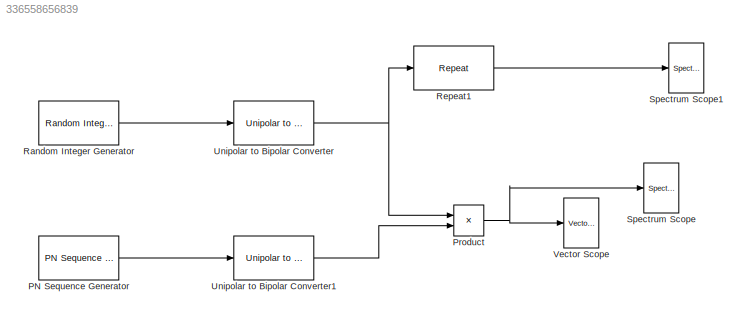
MODEL slx_336558656839
KIND model
BLOCK [Reference] PN Sequence Generator  REF=commseqgen2/PN Sequence
Generator
  Ports = [0, 1]
  SourceBlock = commseqgen2/PN Sequence\nGenerator
  SourceType = PN Sequence Generator
  Ts = (10^-6)/((2^3)-1)
  bitPackDataSigned = off
  bitPackedOutDType = double
  bitPackedOutputs = off
  frameBased = off
  ini_sta = [0 0 0 0 0 1]
  maxOutSize = [10 1]
  maxOutSizeMode = Dialog parameter
  numPackedBits = 8
  outBitMaskSource = Dialog parameter
  outDataType = double
  outVarSiz = off
  poly = [1 1 0 0 0 0 1]
  reset = off
  sampPerFrame = 1
  shift = 0
BLOCK [Product] Product
  InputSameDT = off
  OutDataTypeStr = Inherit: Inherit via internal rule
  Ports = [2, 1]
  SaturateOnIntegerOverflow = off
BLOCK [Reference] Random Integer Generator  REF=commrandsrc2/Random Integer
Generator
  Ports = [0, 1]
  SourceBlock = commrandsrc2/Random Integer\nGenerator
  SourceType = Random Integer Generator
  Ts = 10^-6
  frameBased = off
  mul = 2
  orient = off
  outDataType = double
  sampPerFrame = 1
  seed = 37
BLOCK [Reference] Repeat1  REF=dspsigops/Repeat
  InputProcessing = Columns as channels (frame based)
  N = (2^3)-1
  Ports = [1, 1]
  RateOptions = Allow multirate processing
  SourceBlock = dspsigops/Repeat
  SourceType = Repeat
  UserDataPersistent = on
  ic = 0
  mode = Unused parameter value
BLOCK [Reference] Spectrum Scope  REF=dspsnks4/Spectrum
Scope
  AxisGrid = on
  AxisLegend = off
  AxisProperties = off
  AxisZoom = off
  BufferSize = 128
  DisplayProperties = off
  Domain = Frequency
  FFTlength = 128
  FigPos = get(0,'defaultfigureposition')
  FrameNumber = on
  HorizSpan = 1
  InheritXIncr = on
  LineProperties = off
  Memory = off
  OpenScopeAtSimStart = on
  OpenScopeImmediately = off
  Overlap = 0
  Ports = [1]
  RsSpecScope = 50
  ScopeProperties = on
  SourceBlock = dspsnks4/Spectrum\nScope
  SourceType = Spectrum Scope
  TreatMby1Signals = One channel
  UseBuffer = on
  XAxisParamsVer = 6.9
  XDisplay = 0
  XIncr = 1.0
  XLabel = Samples
  XLimit = Auto
  XMax = 1
  XMin = 0
  XRange = Two-sided ((-Fs/2...Fs/2])
  XUnits = Hertz
  YLabel = Magnitude-squared, dB
  YMax = 10
  YMin = -10
  YUnits = dBW/Hertz
  betaSpecScope = 5
  inpFftLenInherit = on
  isFrameUpgraded = on
  numAvg = 20
  winsampSpecScope = Periodic
  wintypeSpecScope = Hann
BLOCK [Reference] Spectrum Scope1  REF=dspsnks4/Spectrum
Scope
  AxisGrid = on
  AxisLegend = off
  AxisProperties = off
  AxisZoom = off
  BufferSize = 128
  DisplayProperties = off
  Domain = Frequency
  FFTlength = 128
  FigPos = get(0,'defaultfigureposition')
  FrameNumber = on
  HorizSpan = 1
  InheritXIncr = on
  LineProperties = off
  Memory = off
  OpenScopeAtSimStart = on
  OpenScopeImmediately = off
  Overlap = 0
  Ports = [1]
  RsSpecScope = 50
  ScopeProperties = on
  SourceBlock = dspsnks4/Spectrum\nScope
  SourceType = Spectrum Scope
  TreatMby1Signals = One channel
  UseBuffer = on
  XAxisParamsVer = 6.9
  XDisplay = 0
  XIncr = 1.0
  XLabel = Samples
  XLimit = Auto
  XMax = 1
  XMin = 0
  XRange = Two-sided ((-Fs/2...Fs/2])
  XUnits = Hertz
  YLabel = Magnitude-squared, dB
  YMax = 10
  YMin = -10
  YUnits = dBW/Hertz
  betaSpecScope = 5
  inpFftLenInherit = on
  isFrameUpgraded = on
  numAvg = 20
  winsampSpecScope = Periodic
  wintypeSpecScope = Hann
BLOCK [Reference] Unipolar to Bipolar Converter  REF=commutil2/Unipolar to
Bipolar
Converter
  M = 2
  Ports = [1, 1]
  SourceBlock = commutil2/Unipolar to\nBipolar\nConverter
  SourceType = Unipolar to Bipolar Converter
  dataType = Inherit via internal rule
  polarity = Positive
BLOCK [Reference] Unipolar to Bipolar Converter1  REF=commutil2/Unipolar to
Bipolar
Converter
  M = 2
  Ports = [1, 1]
  SourceBlock = commutil2/Unipolar to\nBipolar\nConverter
  SourceType = Unipolar to Bipolar Converter
  dataType = Inherit via internal rule
  polarity = Positive
BLOCK [Reference] Vector Scope  REF=dspsnks4/Vector
Scope
  AxisGrid = on
  AxisLegend = off
  AxisProperties = off
  AxisZoom = off
  DisplayProperties = off
  Domain = Time
  FigPos = get(0,'defaultfigureposition')
  FrameNumber = on
  HorizSpan = 3*((2^3)-1)
  InheritXIncr = on
  LineMarkers = o
  LineProperties = off
  LineStyles = None
  Memory = off
  OpenScopeAtSimStart = on
  OpenScopeImmediately = off
  Ports = [1]
  ScopeProperties = on
  ShowPortLabels = off
  SourceBlock = dspsnks4/Vector\nScope
  SourceType = Vector Scope
  XAxisParamsVer = 6.9
  XIncr = 1
  XLabel = Time
  XLimit = Auto
  XMax = 1
  XMin = 0
  XRange = [0...Fs/2]
  XStart = 0
  XUnits = Hertz
  YLabel = Amplitude
  YMax = 10
  YMin = -10
  YUnits = dB
LINE PN Sequence Generator:1 -> Unipolar to Bipolar Converter1:1
NET Product:1 -> Spectrum Scope:1, Vector Scope:1
LINE Random Integer Generator:1 -> Unipolar to Bipolar Converter:1
LINE Repeat1:1 -> Spectrum Scope1:1
LINE Unipolar to Bipolar Converter1:1 -> Product:2
NET Unipolar to Bipolar Converter:1 -> Product:1, Repeat1:1
note: NET lines group one-source signal fan-out (src -> all destinations, sorted); 1:1 wires keep LINE
